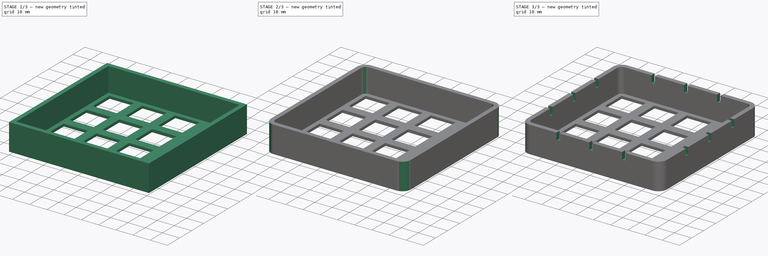
[diagram: build sequence overview — one tinted view per stage of 3, left to right]
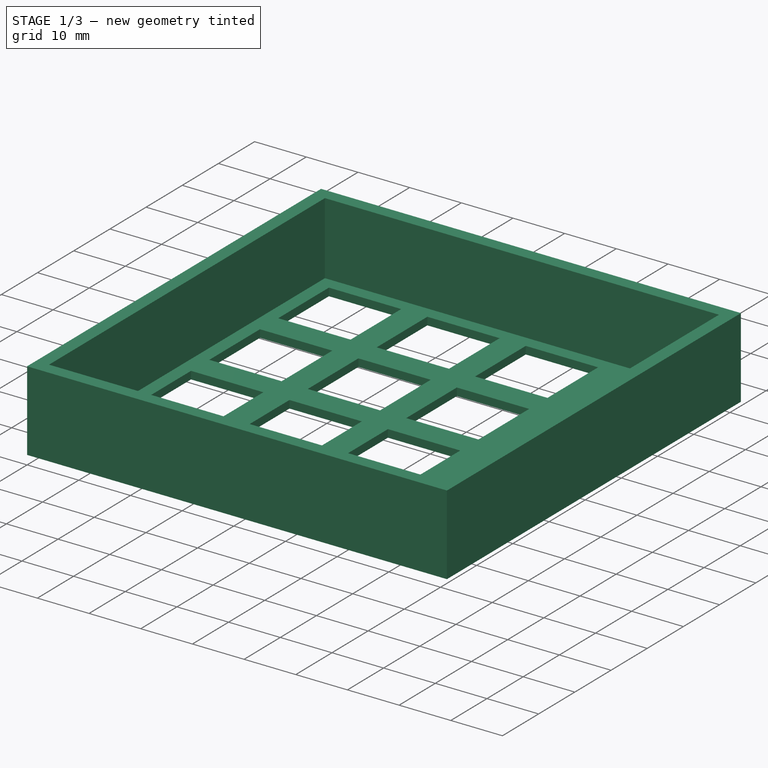
[diagram: stage 1 of 3 — iso view after this stage's code; geometry added in this stage tinted green]
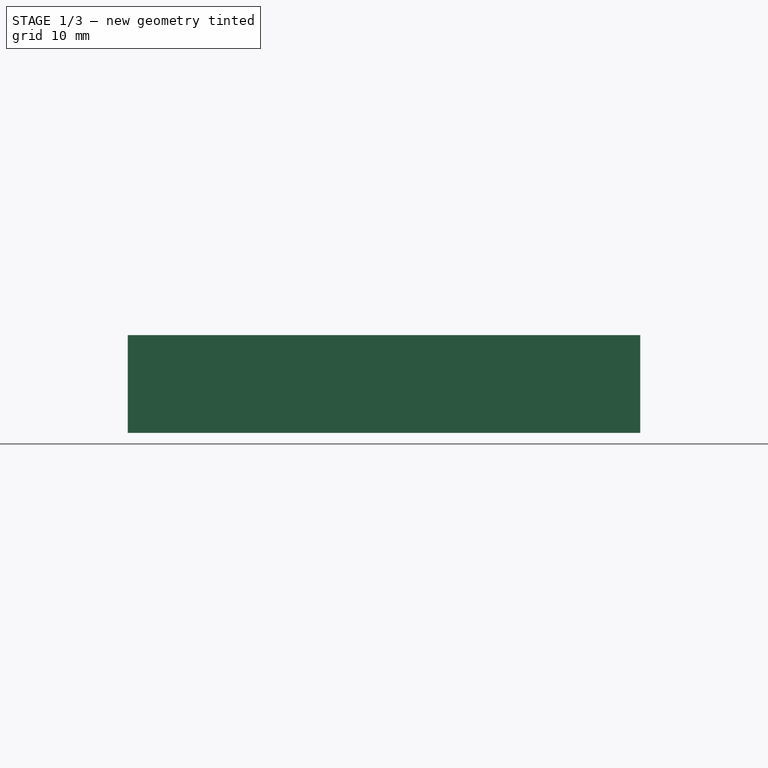
[diagram: stage 1 of 3 — front view after this stage's code; geometry added in this stage tinted green]
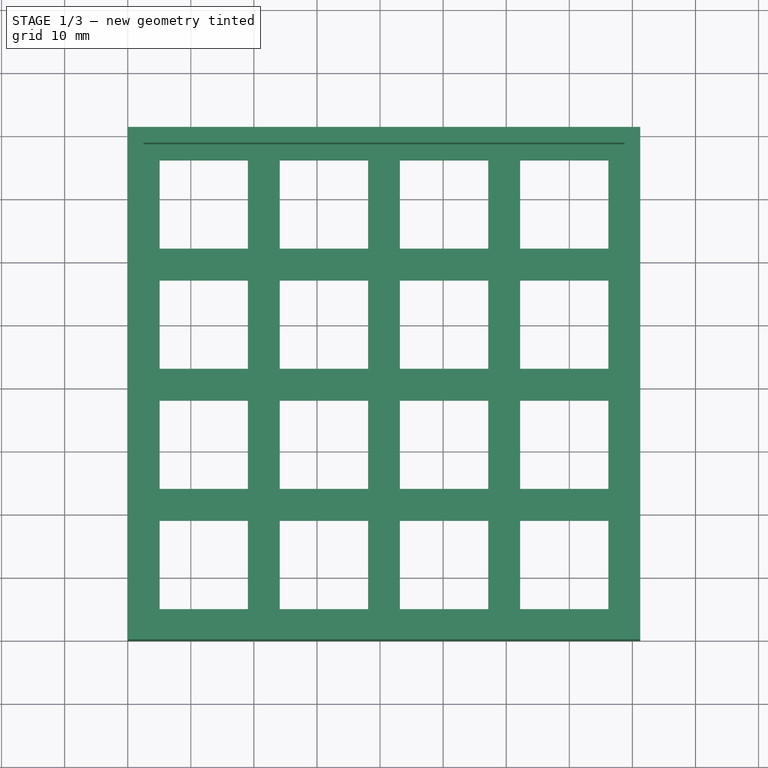
[diagram: stage 1 of 3 — top view after this stage's code; geometry added in this stage tinted green]
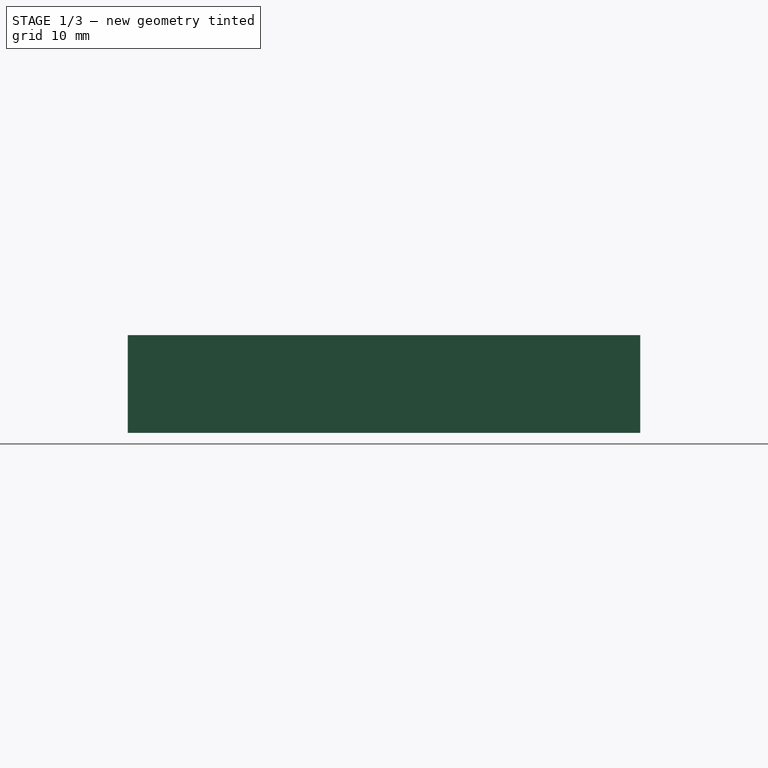
[diagram: stage 1 of 3 — right view after this stage's code; geometry added in this stage tinted green]
FCSTD DOCUMENT  (FreeCAD 0.19R24267 +148 (Git))
Label: 4x4 switch tester
License: All rights reserved
LicenseURL: http://en.wikipedia.org/wiki/All_rights_reserved
objects: Sketcher::SketchObject×4, PartDesign::Pad×2, PartDesign::Fillet×2, PartDesign::Pocket×2, PartDesign::Body×1
note: 17 computed .brp shape members not serialized (recipe doc carries the construction recipe); baked Part::Feature solids carry a one-line shape summary decoded from their .brp

FEATURE [Sketcher::SketchObject] Sketch
  FullyConstrained = true
  MapMode = 5
  Support = -> [XY_Plane]
  sketch-geometry (85):
    g0: LineSegment StartX=0 StartY=0 StartZ=0 EndX=81.25 EndY=0 EndZ=0
    g1: LineSegment StartX=81.25 StartY=0 StartZ=0 EndX=81.25 EndY=81.25 EndZ=0
    g2: LineSegment StartX=81.25 StartY=81.25 StartZ=0 EndX=0 EndY=81.25 EndZ=0
    g3: LineSegment StartX=0 StartY=81.25 StartZ=0 EndX=0 EndY=0 EndZ=0
    g4: LineSegment StartX=5.05 StartY=76.2 StartZ=0 EndX=19.05 EndY=76.2 EndZ=0
    g5: LineSegment StartX=19.05 StartY=76.2 StartZ=0 EndX=19.05 EndY=62.2 EndZ=0
    g6: LineSegment StartX=19.05 StartY=62.2 StartZ=0 EndX=5.05 EndY=62.2 EndZ=0
    g7: LineSegment StartX=5.05 StartY=62.2 StartZ=0 EndX=5.05 EndY=76.2 EndZ=0
    g8: LineSegment StartX=24.1 StartY=76.2 StartZ=0 EndX=38.1 EndY=76.2 EndZ=0
    g9: LineSegment StartX=38.1 StartY=76.2 StartZ=0 EndX=38.1 EndY=62.2 EndZ=0
    g10: LineSegment StartX=38.1 StartY=62.2 StartZ=0 EndX=24.1 EndY=62.2 EndZ=0
    g11: LineSegment StartX=24.1 StartY=62.2 StartZ=0 EndX=24.1 EndY=76.2 EndZ=0
    g12: LineSegment StartX=5.05 StartY=76.2 StartZ=0 EndX=24.1 EndY=76.2 EndZ=0
    g13: LineSegment StartX=43.15 StartY=76.2 StartZ=0 EndX=57.15 EndY=76.2 EndZ=0
    g14: LineSegment StartX=57.15 StartY=76.2 StartZ=0 EndX=57.15 EndY=62.2 EndZ=0
    g15: LineSegment StartX=57.15 StartY=62.2 StartZ=0 EndX=43.15 EndY=62.2 EndZ=0
    g16: LineSegment StartX=43.15 StartY=62.2 StartZ=0 EndX=43.15 EndY=76.2 EndZ=0
    g17: LineSegment StartX=24.1 StartY=76.2 StartZ=0 EndX=43.15 EndY=76.2 EndZ=0
    g18: LineSegment StartX=62.2 StartY=76.2 StartZ=0 EndX=76.2 EndY=76.2 EndZ=0
    g19: LineSegment StartX=76.2 StartY=76.2 StartZ=0 EndX=76.2 EndY=62.2 EndZ=0
    g20: LineSegment StartX=76.2 StartY=62.2 StartZ=0 EndX=62.2 EndY=62.2 EndZ=0
    g21: LineSegment StartX=62.2 StartY=62.2 StartZ=0 EndX=62.2 EndY=76.2 EndZ=0
    g22: LineSegment StartX=43.15 StartY=76.2 StartZ=0 EndX=62.2 EndY=76.2 EndZ=0
    g23: LineSegment StartX=5.05 StartY=57.15 StartZ=0 EndX=19.05 EndY=57.15 EndZ=0
    g24: LineSegment StartX=19.05 StartY=57.15 StartZ=0 EndX=19.05 EndY=43.15 EndZ=0
    g25: LineSegment StartX=19.05 StartY=43.15 StartZ=0 EndX=5.05 EndY=43.15 EndZ=0
    g26: LineSegment StartX=5.05 StartY=43.15 StartZ=0 EndX=5.05 EndY=57.15 EndZ=0
    g27: LineSegment StartX=5.05 StartY=76.2 StartZ=0 EndX=5.05 EndY=57.15 EndZ=0
    g28: LineSegment StartX=24.1 StartY=57.15 StartZ=0 EndX=38.1 EndY=57.15 EndZ=0
    g29: LineSegment StartX=38.1 StartY=57.15 StartZ=0 EndX=38.1 EndY=43.15 EndZ=0
    g30: LineSegment StartX=38.1 StartY=43.15 StartZ=0 EndX=24.1 EndY=43.15 EndZ=0
    g31: LineSegment StartX=24.1 StartY=43.15 StartZ=0 EndX=24.1 EndY=57.15 EndZ=0
    g32: LineSegment StartX=5.05 StartY=57.15 StartZ=0 EndX=24.1 EndY=57.15 EndZ=0
    g33: LineSegment StartX=43.15 StartY=57.15 StartZ=0 EndX=57.15 EndY=57.15 EndZ=0
    g34: LineSegment StartX=57.15 StartY=57.15 StartZ=0 EndX=57.15 EndY=43.15 EndZ=0
    g35: LineSegment StartX=57.15 StartY=43.15 StartZ=0 EndX=43.15 EndY=43.15 EndZ=0
    g36: LineSegment StartX=43.15 StartY=43.15 StartZ=0 EndX=43.15 EndY=57.15 EndZ=0
    g37: LineSegment StartX=24.1 StartY=57.15 StartZ=0 EndX=43.15 EndY=57.15 EndZ=0
    g38: LineSegment StartX=62.2 StartY=57.15 StartZ=0 EndX=76.2 EndY=57.15 EndZ=0
    g39: LineSegment StartX=76.2 StartY=57.15 StartZ=0 EndX=76.2 EndY=43.15 EndZ=0
    g40: LineSegment StartX=76.2 StartY=43.15 StartZ=0 EndX=62.2 EndY=43.15 EndZ=0
    g41: LineSegment StartX=62.2 StartY=43.15 StartZ=0 EndX=62.2 EndY=57.15 EndZ=0
    g42: LineSegment StartX=43.15 StartY=57.15 StartZ=0 EndX=62.2 EndY=57.15 EndZ=0
    g43: LineSegment StartX=5.05 StartY=38.1 StartZ=0 EndX=19.05 EndY=38.1 EndZ=0
    g44: LineSegment StartX=19.05 StartY=38.1 StartZ=0 EndX=19.05 EndY=24.1 EndZ=0
    g45: LineSegment StartX=19.05 StartY=24.1 StartZ=0 EndX=5.05 EndY=24.1 EndZ=0
    g46: LineSegment StartX=5.05 StartY=24.1 StartZ=0 EndX=5.05 EndY=38.1 EndZ=0
    g47: LineSegment StartX=5.05 StartY=57.15 StartZ=0 EndX=5.05 EndY=38.1 EndZ=0
    g48: LineSegment StartX=24.1 StartY=38.1 StartZ=0 EndX=38.1 EndY=38.1 EndZ=0
    g49: LineSegment StartX=38.1 StartY=38.1 StartZ=0 EndX=38.1 EndY=24.1 EndZ=0
    g50: LineSegment StartX=38.1 StartY=24.1 StartZ=0 EndX=24.1 EndY=24.1 EndZ=0
    g51: LineSegment StartX=24.1 StartY=24.1 StartZ=0 EndX=24.1 EndY=38.1 EndZ=0
    g52: LineSegment StartX=5.05 StartY=38.1 StartZ=0 EndX=24.1 EndY=38.1 EndZ=0
    g53: LineSegment StartX=43.15 StartY=38.1 StartZ=0 EndX=57.15 EndY=38.1 EndZ=0
    g54: LineSegment StartX=57.15 StartY=38.1 StartZ=0 EndX=57.15 EndY=24.1 EndZ=0
    g55: LineSegment StartX=57.15 StartY=24.1 StartZ=0 EndX=43.15 EndY=24.1 EndZ=0
    g56: LineSegment StartX=43.15 StartY=24.1 StartZ=0 EndX=43.15 EndY=38.1 EndZ=0
    g57: LineSegment StartX=24.1 StartY=38.1 StartZ=0 EndX=43.15 EndY=38.1 EndZ=0
    g58: LineSegment StartX=62.2 StartY=38.1 StartZ=0 EndX=76.2 EndY=38.1 EndZ=0
    g59: LineSegment StartX=76.2 StartY=38.1 StartZ=0 EndX=76.2 EndY=24.1 EndZ=0
    g60: LineSegment StartX=76.2 StartY=24.1 StartZ=0 EndX=62.2 EndY=24.1 EndZ=0
    g61: LineSegment StartX=62.2 StartY=24.1 StartZ=0 EndX=62.2 EndY=38.1 EndZ=0
    g62: LineSegment StartX=43.15 StartY=38.1 StartZ=0 EndX=62.2 EndY=38.1 EndZ=0
    g63: LineSegment StartX=5.05 StartY=19.05 StartZ=0 EndX=19.05 EndY=19.05 EndZ=0
    g64: LineSegment StartX=19.05 StartY=19.05 StartZ=0 EndX=19.05 EndY=5.05 EndZ=0
    g65: LineSegment StartX=19.05 StartY=5.05 StartZ=0 EndX=5.05 EndY=5.05 EndZ=0
    g66: LineSegment StartX=5.05 StartY=5.05 StartZ=0 EndX=5.05 EndY=19.05 EndZ=0
    g67: LineSegment StartX=5.05 StartY=38.1 StartZ=0 EndX=5.05 EndY=19.05 EndZ=0
    g68: LineSegment StartX=24.1 StartY=19.05 StartZ=0 EndX=38.1 EndY=19.05 EndZ=0
    g69: LineSegment StartX=38.1 StartY=19.05 StartZ=0 EndX=38.1 EndY=5.05 EndZ=0
    g70: LineSegment StartX=38.1 StartY=5.05 StartZ=0 EndX=24.1 EndY=5.05 EndZ=0
    g71: LineSegment StartX=24.1 StartY=5.05 StartZ=0 EndX=24.1 EndY=19.05 EndZ=0
    g72: LineSegment StartX=5.05 StartY=19.05 StartZ=0 EndX=24.1 EndY=19.05 EndZ=0
    g73: LineSegment StartX=43.15 StartY=19.05 StartZ=0 EndX=57.15 EndY=19.05 EndZ=0
    g74: LineSegment StartX=57.15 StartY=19.05 StartZ=0 EndX=57.15 EndY=5.05 EndZ=0
    g75: LineSegment StartX=57.15 StartY=5.05 StartZ=0 EndX=43.15 EndY=5.05 EndZ=0
    g76: LineSegment StartX=43.15 StartY=5.05 StartZ=0 EndX=43.15 EndY=19.05 EndZ=0
    g77: LineSegment StartX=24.1 StartY=19.05 StartZ=0 EndX=43.15 EndY=19.05 EndZ=0
    g78: LineSegment StartX=62.2 StartY=19.05 StartZ=0 EndX=76.2 EndY=19.05 EndZ=0
    g79: LineSegment StartX=76.2 StartY=19.05 StartZ=0 EndX=76.2 EndY=5.05 EndZ=0
    g80: LineSegment StartX=76.2 StartY=5.05 StartZ=0 EndX=62.2 EndY=5.05 EndZ=0
    g81: LineSegment StartX=62.2 StartY=5.05 StartZ=0 EndX=62.2 EndY=19.05 EndZ=0
    g82: LineSegment StartX=43.15 StartY=19.05 StartZ=0 EndX=62.2 EndY=19.05 EndZ=0
    g83: Circle CenterX=40.625 CenterY=40.625 CenterZ=0 NormalX=0 NormalY=0 NormalZ=1 AngleXU=0 Radius=3.57089
    g84: Circle CenterX=40.625 CenterY=40.625 CenterZ=0 NormalX=0 NormalY=0 NormalZ=1 AngleXU=0 Radius=57.4524
  constraints (238):
    c: Coincident(g0,g1)
    c: Coincident(g1,g2)
    c: Coincident(g2,g3)
    c: Coincident(g3,g0)
    c: Horizontal(g0)
    c: Horizontal(g2)
    c: Vertical(g1)
    c: Vertical(g3)
    c: Coincident(g0,g-1)
    c: Coincident(g4,g5)
    c: Coincident(g5,g6)
    c: Coincident(g6,g7)
    c: Coincident(g7,g4)
    c: Horizontal(g4)
    c: Horizontal(g6)
    c: Vertical(g5)
    c: Vertical(g7)
    c: Equal(g4,g5)
    c: DistanceX(g4,g4) = 14
    c: Coincident(g8,g9)
    c: Coincident(g9,g10)
    c: Coincident(g10,g11)
    c: Coincident(g11,g8)
    c: Horizontal(g8)
    c: Horizontal(g10)
    c: Vertical(g9)
    c: Vertical(g11)
    c: Equal(g8,g9)
    c: DistanceX(g8,g8) = 14
    c: Coincident(g4,g12)
    c: Coincident(g8,g12)
    c: Distance(g12) = 19.05
    c: Angle(g12) = 0
    c: Coincident(g13,g14)
    c: Coincident(g14,g15)
    c: Coincident(g15,g16)
    c: Coincident(g16,g13)
    c: Horizontal(g13)
    c: Horizontal(g15)
    c: Vertical(g14)
    c: Vertical(g16)
    c: Equal(g13,g14)
    c: DistanceX(g13,g13) = 14
    c: Coincident(g8,g17)
    c: Coincident(g13,g17)
    c: Equal(g12,g17)
    c: Parallel(g17,g12)
    c: Coincident(g18,g19)
    c: Coincident(g19,g20)
    c: Coincident(g20,g21)
    c: Coincident(g21,g18)
    c: Horizontal(g18)
    c: Horizontal(g20)
    c: Vertical(g19)
    c: Vertical(g21)
    c: Equal(g18,g19)
    c: DistanceX(g18,g18) = 14
    c: Coincident(g13,g22)
    c: Coincident(g18,g22)
    c: Equal(g12,g22)
    c: Parallel(g22,g12)
    c: Coincident(g23,g24)
    c: Coincident(g24,g25)
    c: Coincident(g25,g26)
    c: Coincident(g26,g23)
    c: Horizontal(g23)
    c: Horizontal(g25)
    c: Vertical(g24)
    c: Vertical(g26)
    c: Equal(g23,g24)
    c: DistanceX(g23,g23) = 14
    c: Coincident(g4,g27)
    c: Coincident(g23,g27)
    c: Equal(g27,g12)
    c: Perpendicular(g27,g12)
    c: Coincident(g28,g29)
    c: Coincident(g29,g30)
    c: Coincident(g30,g31)
    c: Coincident(g31,g28)
    c: Horizontal(g28)
    c: Horizontal(g30)
    c: Vertical(g29)
    c: Vertical(g31)
    c: Equal(g28,g29)
    c: DistanceX(g28,g28) = 14
    c: Coincident(g23,g32)
    c: Coincident(g28,g32)
    c: Equal(g12,g32)
    c: Parallel(g32,g12)
    c: Coincident(g33,g34)
    c: Coincident(g34,g35)
    c: Coincident(g35,g36)
    c: Coincident(g36,g33)
    c: Horizontal(g33)
    c: Horizontal(g35)
    c: Vertical(g34)
    c: Vertical(g36)
    c: Equal(g33,g34)
    c: DistanceX(g33,g33) = 14
    c: Coincident(g28,g37)
    c: Coincident(g33,g37)
    c: Equal(g12,g37)
    c: Parallel(g37,g12)
    c: Coincident(g38,g39)
    c: Coincident(g39,g40)
    c: Coincident(g40,g41)
    c: Coincident(g41,g38)
    c: Horizontal(g38)
    c: Horizontal(g40)
    c: Vertical(g39)
    c: Vertical(g41)
    c: Equal(g38,g39)
    c: DistanceX(g38,g38) = 14
    c: Coincident(g33,g42)
    c: Coincident(g38,g42)
    c: Equal(g12,g42)
    c: Parallel(g42,g12)
    c: Coincident(g43,g44)
    c: Coincident(g44,g45)
    c: Coincident(g45,g46)
    c: Coincident(g46,g43)
    c: Horizontal(g43)
    c: Horizontal(g45)
    c: Vertical(g44)
    c: Vertical(g46)
    c: Equal(g43,g44)
    c: DistanceX(g43,g43) = 14
    c: Coincident(g23,g47)
    c: Coincident(g43,g47)
    c: Equal(g27,g47)
    c: Perpendicular(g47,g12)
    c: Coincident(g48,g49)
    c: Coincident(g49,g50)
    c: Coincident(g50,g51)
    c: Coincident(g51,g48)
    c: Horizontal(g48)
    c: Horizontal(g50)
    c: Vertical(g49)
    c: Vertical(g51)
    c: Equal(g48,g49)
    c: DistanceX(g48,g48) = 14
    c: Coincident(g43,g52)
    c: Coincident(g48,g52)
    c: Equal(g12,g52)
    c: Parallel(g52,g12)
    c: Coincident(g53,g54)
    c: Coincident(g54,g55)
    c: Coincident(g55,g56)
    c: Coincident(g56,g53)
    c: Horizontal(g53)
    c: Horizontal(g55)
    c: Vertical(g54)
    c: Vertical(g56)
    c: Equal(g53,g54)
    c: DistanceX(g53,g53) = 14
    c: Coincident(g48,g57)
    c: Coincident(g53,g57)
    c: Equal(g12,g57)
    c: Parallel(g57,g12)
    c: Coincident(g58,g59)
    c: Coincident(g59,g60)
    c: Coincident(g60,g61)
    c: Coincident(g61,g58)
    c: Horizontal(g58)
    c: Horizontal(g60)
    c: Vertical(g59)
    c: Vertical(g61)
    c: Equal(g58,g59)
    c: DistanceX(g58,g58) = 14
    c: Coincident(g53,g62)
    c: Coincident(g58,g62)
    c: Equal(g12,g62)
    c: Parallel(g62,g12)
    c: Coincident(g63,g64)
    c: Coincident(g64,g65)
    c: Coincident(g65,g66)
    c: Coincident(g66,g63)
    c: Horizontal(g63)
    c: Horizontal(g65)
    c: Vertical(g64)
    c: Vertical(g66)
    c: Equal(g63,g64)
    c: DistanceX(g63,g63) = 14
    c: Coincident(g43,g67)
    c: Coincident(g63,g67)
    c: Equal(g27,g67)
    c: Perpendicular(g67,g12)
    c: Coincident(g68,g69)
    c: Coincident(g69,g70)
    c: Coincident(g70,g71)
    c: Coincident(g71,g68)
    c: Horizontal(g68)
    c: Horizontal(g70)
    c: Vertical(g69)
    c: Vertical(g71)
    c: Equal(g68,g69)
    c: DistanceX(g68,g68) = 14
    c: Coincident(g63,g72)
    c: Coincident(g68,g72)
    c: Equal(g12,g72)
    c: Parallel(g72,g12)
    c: Coincident(g73,g74)
    c: Coincident(g74,g75)
    c: Coincident(g75,g76)
    c: Coincident(g76,g73)
    c: Horizontal(g73)
    c: Horizontal(g75)
    c: Vertical(g74)
    c: Vertical(g76)
    c: Equal(g73,g74)
    c: DistanceX(g73,g73) = 14
    c: Coincident(g68,g77)
    c: Coincident(g73,g77)
    c: Equal(g12,g77)
    c: Parallel(g77,g12)
    c: Coincident(g78,g79)
    c: Coincident(g79,g80)
    c: Coincident(g80,g81)
    c: Coincident(g81,g78)
    c: Horizontal(g78)
    c: Horizontal(g80)
    c: Vertical(g79)
    c: Vertical(g81)
    c: Equal(g78,g79)
    c: DistanceX(g78,g78) = 14
    c: Coincident(g73,g82)
    c: Coincident(g78,g82)
    c: Equal(g12,g82)
    c: Parallel(g82,g12)
    c: PointOnObject(g29,g83)
    c: PointOnObject(g35,g83)
    c: PointOnObject(g53,g83)
    c: Equal(g2,g1)
    c: PointOnObject(g2,g84)
    c: PointOnObject(g1,g84)
    c: PointOnObject(g0,g84)
    c: DistanceX(g1) = 81.25
    c: Coincident(g83,g84)
FEATURE [PartDesign::Pad] Pad
  Direction = (1,1,1)
  Length = 1.5
  Length2 = 100
  Profile = -> Sketch
  Type = 0
FEATURE [Sketcher::SketchObject] Sketch001
  FullyConstrained = true
  MapMode = 5
  Placement = pos=(0,0,1.5) rot=(0,0,1;0rad)
  Support = -> [Pad]
  sketch-geometry (10):
    g0: LineSegment StartX=0 StartY=0 StartZ=0 EndX=81.25 EndY=0 EndZ=0
    g1: LineSegment StartX=81.25 StartY=0 StartZ=0 EndX=81.25 EndY=81.25 EndZ=0
    g2: LineSegment StartX=81.25 StartY=81.25 StartZ=0 EndX=0 EndY=81.25 EndZ=0
    g3: LineSegment StartX=0 StartY=81.25 StartZ=0 EndX=0 EndY=0 EndZ=0
    g4: Circle CenterX=40.625 CenterY=40.625 CenterZ=0 NormalX=0 NormalY=0 NormalZ=1 AngleXU=0 Radius=57.4524
    g5: LineSegment StartX=2.5 StartY=78.75 StartZ=0 EndX=78.75 EndY=78.75 EndZ=0
    g6: LineSegment StartX=78.75 StartY=78.75 StartZ=0 EndX=78.75 EndY=2.5 EndZ=0
    g7: LineSegment StartX=78.75 StartY=2.5 StartZ=0 EndX=2.5 EndY=2.5 EndZ=0
    g8: LineSegment StartX=2.5 StartY=2.5 StartZ=0 EndX=2.5 EndY=78.75 EndZ=0
    g9: Circle CenterX=40.625 CenterY=40.625 CenterZ=0 NormalX=0 NormalY=0 NormalZ=1 AngleXU=0 Radius=53.9169
  constraints (28):
    c: Coincident(g0,g1)
    c: Coincident(g1,g2)
    c: Coincident(g2,g3)
    c: Coincident(g3,g0)
    c: Horizontal(g0)
    c: Horizontal(g2)
    c: Vertical(g1)
    c: Vertical(g3)
    c: Coincident(g0,g-1)
    c: Equal(g2,g1)
    c: DistanceX(g2,g2) = 81.25
    c: PointOnObject(g1,g4)
    c: PointOnObject(g0,g4)
    c: PointOnObject(g0,g4)
    c: Coincident(g5,g6)
    c: Coincident(g6,g7)
    c: Coincident(g7,g8)
    c: Coincident(g8,g5)
    c: Horizontal(g5)
    c: Horizontal(g7)
    c: Vertical(g6)
    c: Vertical(g8)
    c: Equal(g6,g5)
    c: DistanceX(g5,g5) = 76.25
    c: Coincident(g9,g4)
    c: PointOnObject(g5,g9)
    c: PointOnObject(g5,g9)
    c: PointOnObject(g6,g9)
FEATURE [PartDesign::Pad] Pad001
  BaseFeature = -> Pad
  Direction = (1,1,1)
  Length = 14
  Length2 = 100
  Profile = -> Sketch001
  Type = 0
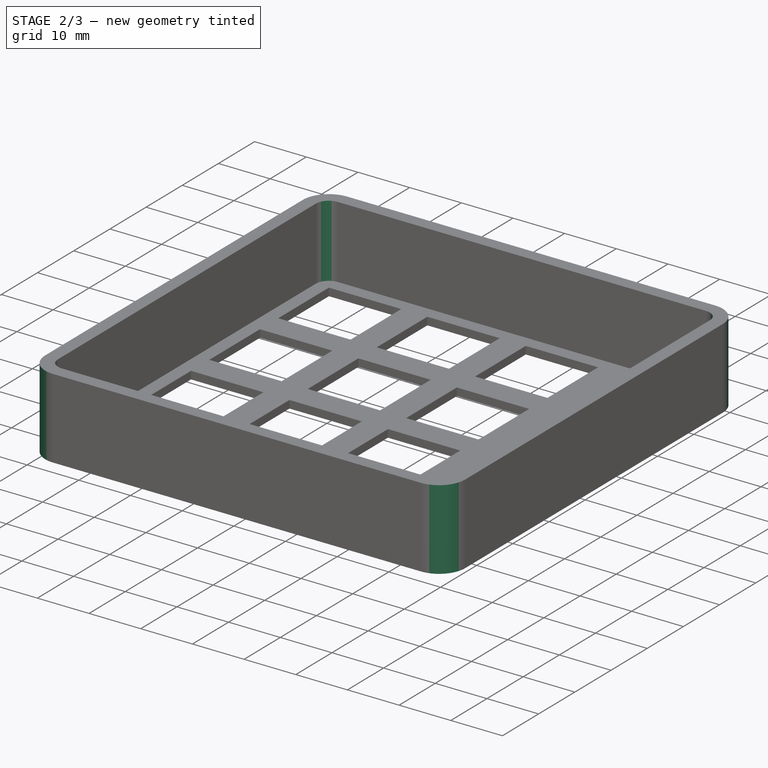
[diagram: stage 2 of 3 — iso view after this stage's code; geometry added in this stage tinted green]
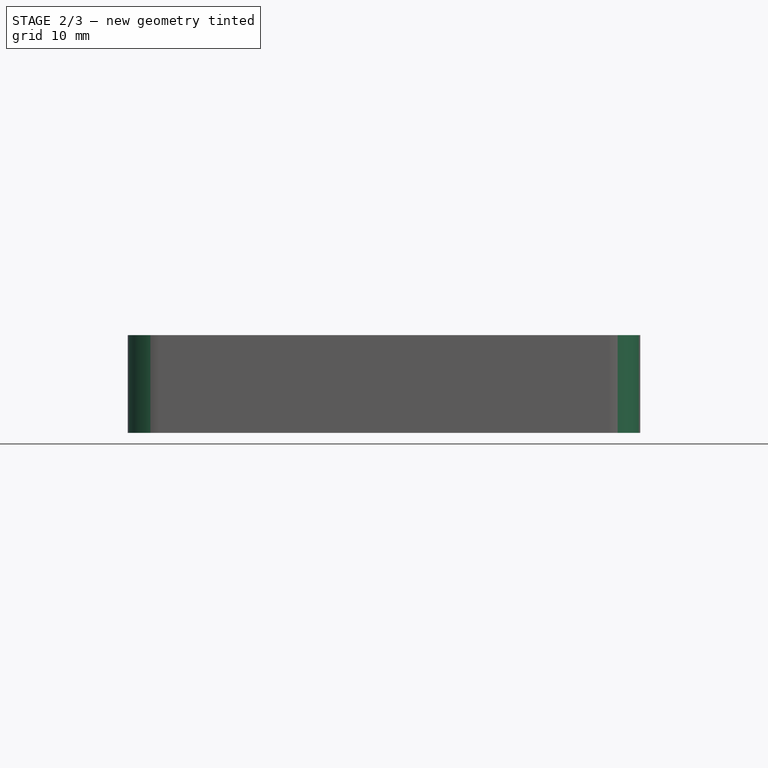
[diagram: stage 2 of 3 — front view after this stage's code; geometry added in this stage tinted green]
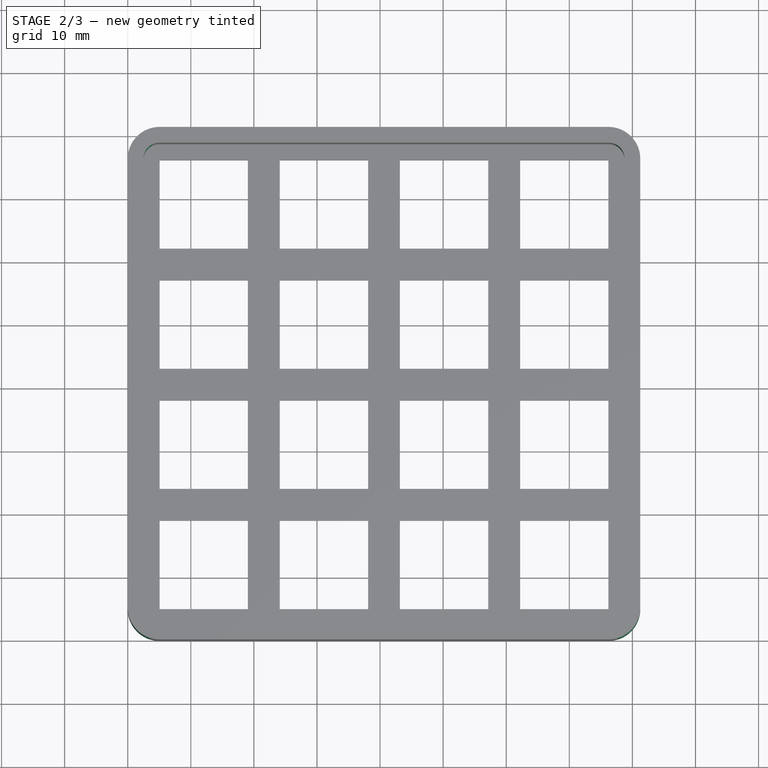
[diagram: stage 2 of 3 — top view after this stage's code; geometry added in this stage tinted green]
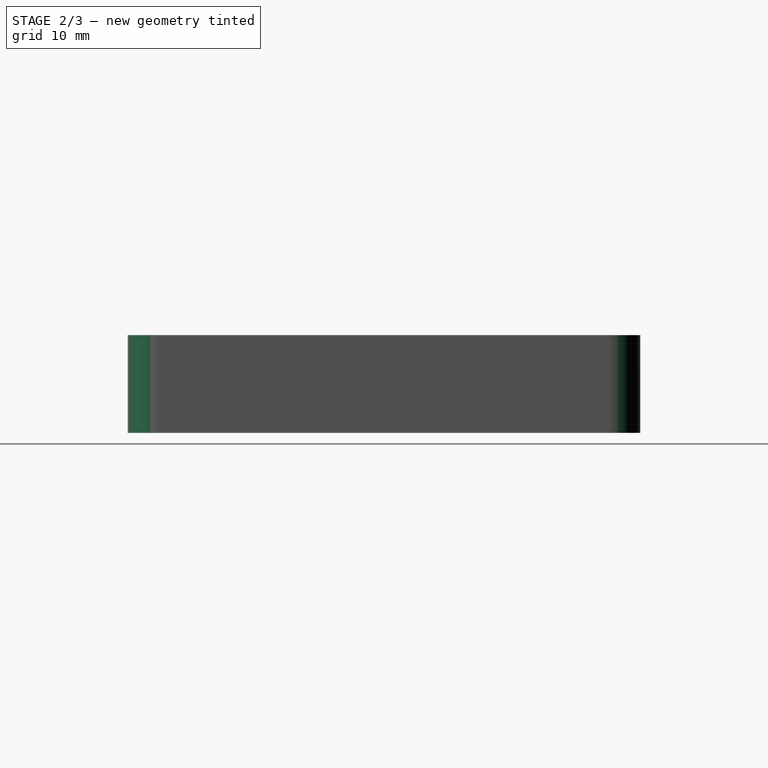
[diagram: stage 2 of 3 — right view after this stage's code; geometry added in this stage tinted green]
FEATURE [PartDesign::Fillet] Fillet
  Base = -> Pad001 [Edge76,Edge77,Edge82,Edge80]
  BaseFeature = -> Pad001
  Radius = 5.05
  SupportTransform = false
FEATURE [PartDesign::Fillet] Fillet001
  Base = -> Fillet [Edge241,Edge244,Edge243,Edge242]
  BaseFeature = -> Fillet
  Radius = 2.5
  SupportTransform = false
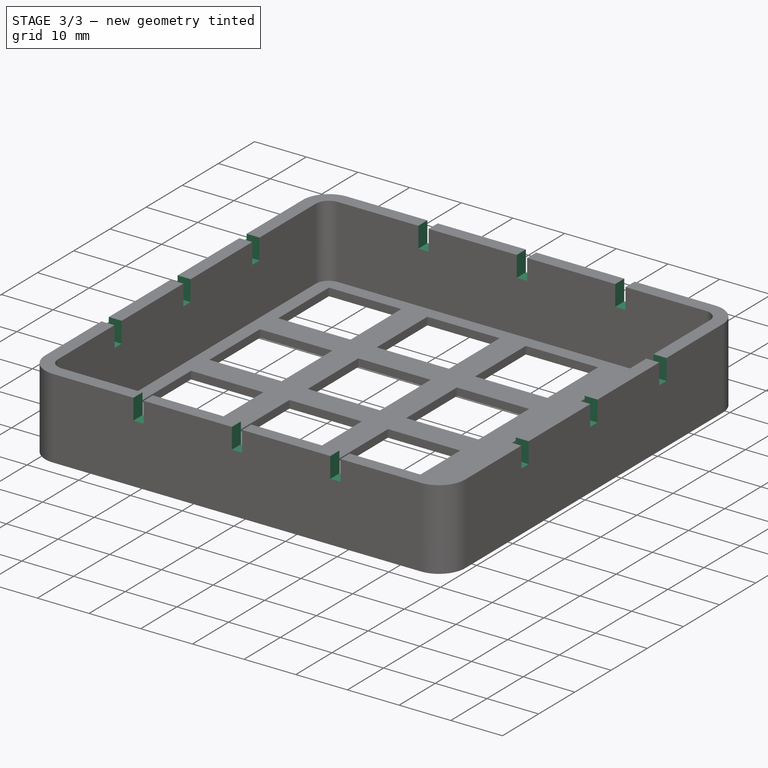
[diagram: stage 3 of 3 — iso view after this stage's code; geometry added in this stage tinted green]
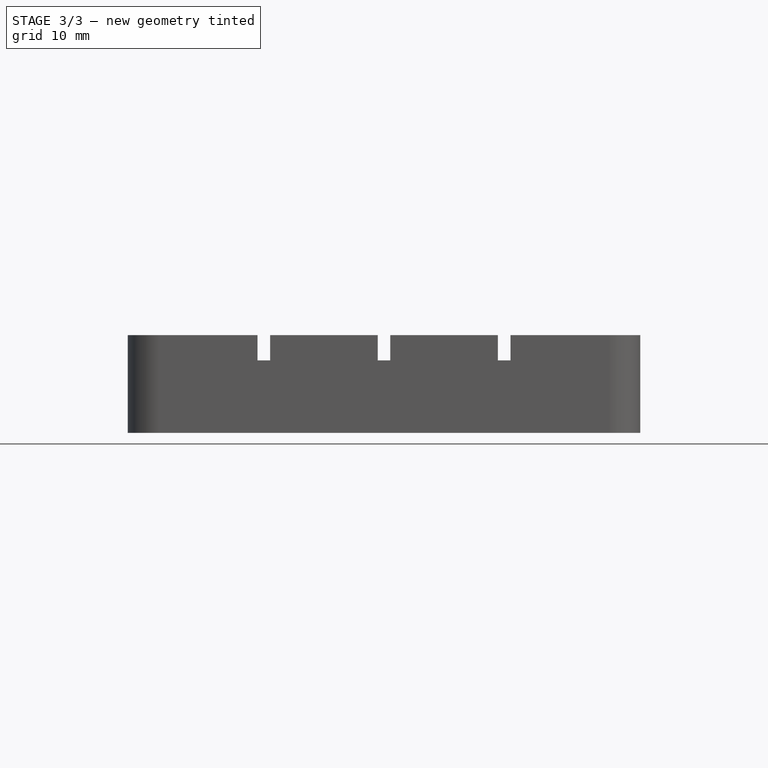
[diagram: stage 3 of 3 — front view after this stage's code; geometry added in this stage tinted green]
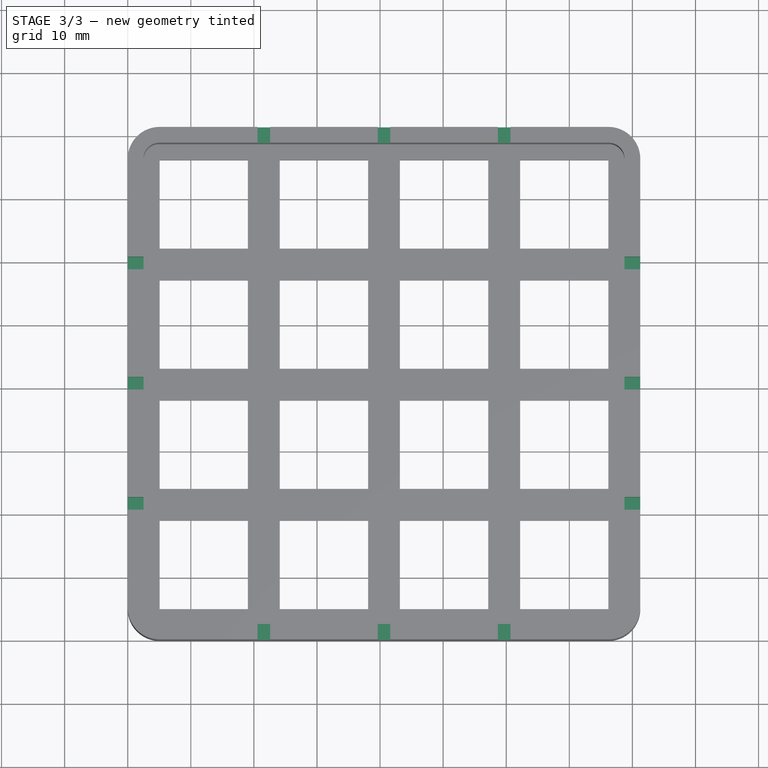
[diagram: stage 3 of 3 — top view after this stage's code; geometry added in this stage tinted green]
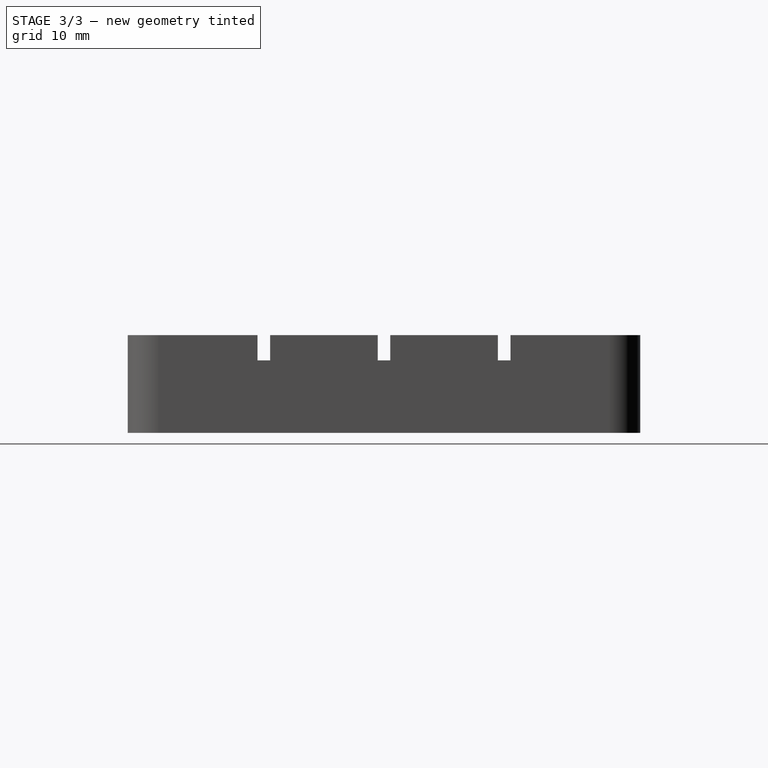
[diagram: stage 3 of 3 — right view after this stage's code; geometry added in this stage tinted green]
FEATURE [Sketcher::SketchObject] Sketch002
  FullyConstrained = true
  MapMode = 5
  Placement = pos=(0,0,0) rot=(1,0,0;1.5708rad)
  Support = -> [Fillet001]
  sketch-geometry (44):
    g0: LineSegment StartX=0 StartY=0 StartZ=0 EndX=81.25 EndY=0 EndZ=0
    g1: LineSegment StartX=81.25 StartY=0 StartZ=0 EndX=81.25 EndY=15.5 EndZ=0
    g2: LineSegment StartX=81.25 StartY=15.5 StartZ=0 EndX=0 EndY=15.5 EndZ=0
    g3: LineSegment StartX=0 StartY=15.5 StartZ=0 EndX=0 EndY=0 EndZ=0
    g4: LineSegment StartX=0 StartY=15.5 StartZ=0 EndX=81.25 EndY=0 EndZ=0
    g5: LineSegment StartX=81.25 StartY=15.5 StartZ=0 EndX=0 EndY=0 EndZ=0
    g6: GeomPoint X=40.625 Y=7.75 Z=0
    g7: LineSegment StartX=24.1 StartY=15.5 StartZ=0 EndX=19.05 EndY=15.5 EndZ=0
    g8: LineSegment StartX=19.05 StartY=15.5 StartZ=0 EndX=19.05 EndY=11.5 EndZ=0
    g9: LineSegment StartX=19.05 StartY=11.5 StartZ=0 EndX=24.1 EndY=11.5 EndZ=0
    g10: LineSegment StartX=24.1 StartY=11.5 StartZ=0 EndX=24.1 EndY=15.5 EndZ=0
    g11: LineSegment StartX=41.625 StartY=15.5 StartZ=0 EndX=39.625 EndY=15.5 EndZ=0
    g12: LineSegment StartX=39.625 StartY=15.5 StartZ=0 EndX=39.625 EndY=11.5 EndZ=0
    g13: LineSegment StartX=39.625 StartY=11.5 StartZ=0 EndX=41.625 EndY=11.5 EndZ=0
    g14: LineSegment StartX=41.625 StartY=11.5 StartZ=0 EndX=41.625 EndY=15.5 EndZ=0
    g15: LineSegment StartX=39.625 StartY=15.5 StartZ=0 EndX=41.625 EndY=11.5 EndZ=0
    g16: LineSegment StartX=41.625 StartY=15.5 StartZ=0 EndX=39.625 EndY=11.5 EndZ=0
    g17: GeomPoint X=40.625 Y=13.5 Z=0
    g18: LineSegment StartX=40.625 StartY=13.5 StartZ=0 EndX=40.625 EndY=7.75 EndZ=0
    g19: LineSegment StartX=19.05 StartY=15.5 StartZ=0 EndX=24.1 EndY=11.5 EndZ=0
    g20: LineSegment StartX=24.1 StartY=15.5 StartZ=0 EndX=19.05 EndY=11.5 EndZ=0
    g21: GeomPoint X=21.575 Y=13.5 Z=0
    g22: LineSegment StartX=22.575 StartY=15.5 StartZ=0 EndX=20.575 EndY=15.5 EndZ=0
    g23: LineSegment StartX=20.575 StartY=15.5 StartZ=0 EndX=20.575 EndY=11.5 EndZ=0
    g24: LineSegment StartX=20.575 StartY=11.5 StartZ=0 EndX=22.575 EndY=11.5 EndZ=0
    g25: LineSegment StartX=22.575 StartY=11.5 StartZ=0 EndX=22.575 EndY=15.5 EndZ=0
    g26: LineSegment StartX=20.575 StartY=15.5 StartZ=0 EndX=22.575 EndY=11.5 EndZ=0
    g27: LineSegment StartX=22.575 StartY=15.5 StartZ=0 EndX=20.575 EndY=11.5 EndZ=0
    g28: GeomPoint X=21.575 Y=13.5 Z=0
    g29: LineSegment StartX=21.575 StartY=13.5 StartZ=0 EndX=21.575 EndY=13.5 EndZ=0
    g30: LineSegment StartX=62.2 StartY=15.5 StartZ=0 EndX=57.15 EndY=15.5 EndZ=0
    g31: LineSegment StartX=57.15 StartY=15.5 StartZ=0 EndX=57.15 EndY=11.5 EndZ=0
    g32: LineSegment StartX=57.15 StartY=11.5 StartZ=0 EndX=62.2 EndY=11.5 EndZ=0
    g33: LineSegment StartX=62.2 StartY=11.5 StartZ=0 EndX=62.2 EndY=15.5 EndZ=0
    g34: LineSegment StartX=57.15 StartY=15.5 StartZ=0 EndX=62.2 EndY=11.5 EndZ=0
    g35: LineSegment StartX=62.2 StartY=15.5 StartZ=0 EndX=57.15 EndY=11.5 EndZ=0
    g36: GeomPoint X=59.675 Y=13.5 Z=0
    g37: LineSegment StartX=60.675 StartY=15.5 StartZ=0 EndX=58.675 EndY=15.5 EndZ=0
    g38: LineSegment StartX=58.675 StartY=15.5 StartZ=0 EndX=58.675 EndY=11.5 EndZ=0
    g39: LineSegment StartX=58.675 StartY=11.5 StartZ=0 EndX=60.675 EndY=11.5 EndZ=0
    g40: LineSegment StartX=60.675 StartY=11.5 StartZ=0 EndX=60.675 EndY=15.5 EndZ=0
    g41: LineSegment StartX=58.675 StartY=15.5 StartZ=0 EndX=60.675 EndY=11.5 EndZ=0
    g42: LineSegment StartX=60.675 StartY=15.5 StartZ=0 EndX=58.675 EndY=11.5 EndZ=0
    g43: GeomPoint X=59.675 Y=13.5 Z=0
  constraints (110):
    c: Coincident(g0,g1)
    c: Coincident(g1,g2)
    c: Coincident(g2,g3)
    c: Coincident(g3,g0)
    c: Horizontal(g0)
    c: Horizontal(g2)
    c: Vertical(g1)
    c: Vertical(g3)
    c: Coincident(g0,g-1)
    c: DistanceX(g2,g2) = 81.25
    c: DistanceY(g1,g1) = 15.5
    c: Coincident(g4,g2)
    c: Coincident(g4,g0)
    c: Coincident(g5,g1)
    c: Coincident(g5,g-1)
    c: PointOnObject(g6,g5)
    c: PointOnObject(g6,g4)
    c: Coincident(g7,g8)
    c: Coincident(g8,g9)
    c: Coincident(g9,g10)
    c: Coincident(g10,g7)
    c: Horizontal(g7)
    c: Horizontal(g9)
    c: Vertical(g8)
    c: Vertical(g10)
    c: PointOnObject(g7,g2)
    c: Distance(g7,g3) = 19.05
    c: Distance(g9) = 5.05
    c: Coincident(g11,g12)
    c: Coincident(g12,g13)
    c: Coincident(g13,g14)
    c: Coincident(g14,g11)
    c: Horizontal(g11)
    c: Horizontal(g13)
    c: Vertical(g12)
    c: Vertical(g14)
    c: PointOnObject(g11,g2)
    c: Coincident(g15,g11)
    c: Coincident(g15,g13)
    c: Coincident(g16,g11)
    c: Coincident(g16,g12)
    c: PointOnObject(g17,g15)
    c: PointOnObject(g17,g16)
    c: Coincident(g18,g17)
    c: Coincident(g18,g6)
    c: Vertical(g18)
    c: DistanceX(g13,g13) = 2
    c: DistanceY(g12,g12) = 4
    c: DistanceY(g10,g10) = 4
    c: Coincident(g19,g7)
    c: Coincident(g19,g9)
    c: Coincident(g20,g7)
    c: Coincident(g20,g8)
    c: PointOnObject(g21,g20)
    c: PointOnObject(g21,g19)
    c: Coincident(g22,g23)
    c: Coincident(g23,g24)
    c: Coincident(g24,g25)
    c: Coincident(g25,g22)
    c: Horizontal(g22)
    c: Horizontal(g24)
    c: Vertical(g23)
    c: Vertical(g25)
    c: PointOnObject(g22,g2)
    c: Coincident(g26,g22)
    c: Coincident(g26,g24)
    c: Coincident(g27,g22)
    c: Coincident(g27,g23)
    c: PointOnObject(g28,g27)
    c: PointOnObject(g28,g26)
    c: Coincident(g29,g21)
    c: Coincident(g29,g28)
    c: Vertical(g29)
    c: DistanceY(g25,g25) = 4
    c: DistanceX(g24,g24) = 2
    c: Coincident(g30,g31)
    c: Coincident(g31,g32)
    c: Coincident(g32,g33)
    c: Coincident(g33,g30)
    c: Horizontal(g30)
    c: Horizontal(g32)
    c: Vertical(g31)
    c: Vertical(g33)
    c: PointOnObject(g30,g2)
    c: DistanceY(g33,g33) = 4
    c: DistanceX(g32,g32) = 5.05
    c: Coincident(g34,g30)
    c: Coincident(g34,g32)
    c: Coincident(g35,g30)
    c: Coincident(g35,g31)
    c: PointOnObject(g36,g34)
    c: PointOnObject(g36,g35)
    c: Coincident(g37,g38)
    c: Coincident(g38,g39)
    c: Coincident(g39,g40)
    c: Coincident(g40,g37)
    c: Horizontal(g37)
    c: Horizontal(g39)
    c: Vertical(g38)
    c: Vertical(g40)
    c: PointOnObject(g37,g2)
    c: Coincident(g41,g37)
    c: Coincident(g41,g39)
    c: Coincident(g42,g37)
    c: Coincident(g42,g38)
    c: PointOnObject(g43,g42)
    c: PointOnObject(g43,g41)
    c: DistanceX(g39,g39) = 2
    c: Coincident(g43,g36)
    c: Distance(g32,g1) = 19.05
FEATURE [PartDesign::Pocket] Pocket
  BaseFeature = -> Fillet001
  Length = 85
  Length2 = 100
  Profile = -> Sketch002
  Type = 0
FEATURE [Sketcher::SketchObject] Sketch003
  FullyConstrained = true
  MapMode = 5
  Placement = pos=(0,0,0) rot=(0.57735,-0.57735,-0.57735;2.0944rad)
  Support = -> [Pocket]
  sketch-geometry (44):
    g0: LineSegment StartX=0 StartY=0 StartZ=0 EndX=-81.25 EndY=0 EndZ=0
    g1: LineSegment StartX=-81.25 StartY=0 StartZ=0 EndX=-81.25 EndY=15.5 EndZ=0
    g2: LineSegment StartX=-81.25 StartY=15.5 StartZ=0 EndX=0 EndY=15.5 EndZ=0
    g3: LineSegment StartX=0 StartY=15.5 StartZ=0 EndX=0 EndY=0 EndZ=0
    g4: LineSegment StartX=-81.25 StartY=15.5 StartZ=0 EndX=0 EndY=0 EndZ=0
    g5: LineSegment StartX=0 StartY=15.5 StartZ=0 EndX=-81.25 EndY=0 EndZ=0
    g6: GeomPoint X=-40.625 Y=7.75 Z=0
    g7: LineSegment StartX=-39.625 StartY=15.5 StartZ=0 EndX=-41.625 EndY=15.5 EndZ=0
    g8: LineSegment StartX=-41.625 StartY=15.5 StartZ=0 EndX=-41.625 EndY=11.5 EndZ=0
    g9: LineSegment StartX=-41.625 StartY=11.5 StartZ=0 EndX=-39.625 EndY=11.5 EndZ=0
    g10: LineSegment StartX=-39.625 StartY=11.5 StartZ=0 EndX=-39.625 EndY=15.5 EndZ=0
    g11: LineSegment StartX=-41.625 StartY=15.5 StartZ=0 EndX=-39.625 EndY=11.5 EndZ=0
    g12: LineSegment StartX=-39.625 StartY=15.5 StartZ=0 EndX=-41.625 EndY=11.5 EndZ=0
    g13: GeomPoint X=-40.625 Y=13.5 Z=0
    g14: LineSegment StartX=-40.625 StartY=13.5 StartZ=0 EndX=-40.625 EndY=7.75 EndZ=0
    g15: LineSegment StartX=-24.1 StartY=15.5 StartZ=0 EndX=-19.05 EndY=15.5 EndZ=0
    g16: LineSegment StartX=-19.05 StartY=15.5 StartZ=0 EndX=-19.05 EndY=11.5 EndZ=0
    g17: LineSegment StartX=-19.05 StartY=11.5 StartZ=0 EndX=-24.1 EndY=11.5 EndZ=0
    g18: LineSegment StartX=-24.1 StartY=11.5 StartZ=0 EndX=-24.1 EndY=15.5 EndZ=0
    g19: LineSegment StartX=-24.1 StartY=15.5 StartZ=0 EndX=-19.05 EndY=11.5 EndZ=0
    g20: LineSegment StartX=-19.05 StartY=15.5 StartZ=0 EndX=-24.1 EndY=11.5 EndZ=0
    g21: GeomPoint X=-21.575 Y=13.5 Z=0
    g22: LineSegment StartX=-20.575 StartY=15.5 StartZ=0 EndX=-22.575 EndY=15.5 EndZ=0
    g23: LineSegment StartX=-22.575 StartY=15.5 StartZ=0 EndX=-22.575 EndY=11.5 EndZ=0
    g24: LineSegment StartX=-22.575 StartY=11.5 StartZ=0 EndX=-20.575 EndY=11.5 EndZ=0
    g25: LineSegment StartX=-20.575 StartY=11.5 StartZ=0 EndX=-20.575 EndY=15.5 EndZ=0
    g26: LineSegment StartX=-22.575 StartY=15.5 StartZ=0 EndX=-20.575 EndY=11.5 EndZ=0
    g27: LineSegment StartX=-20.575 StartY=15.5 StartZ=0 EndX=-22.575 EndY=11.5 EndZ=0
    g28: GeomPoint X=-21.575 Y=13.5 Z=0
    g29: LineSegment StartX=-21.575 StartY=13.5 StartZ=0 EndX=-21.575 EndY=13.5 EndZ=0
    g30: LineSegment StartX=-57.15 StartY=15.5 StartZ=0 EndX=-62.2 EndY=15.5 EndZ=0
    g31: LineSegment StartX=-62.2 StartY=15.5 StartZ=0 EndX=-62.2 EndY=11.5 EndZ=0
    g32: LineSegment StartX=-62.2 StartY=11.5 StartZ=0 EndX=-57.15 EndY=11.5 EndZ=0
    g33: LineSegment StartX=-57.15 StartY=11.5 StartZ=0 EndX=-57.15 EndY=15.5 EndZ=0
    g34: LineSegment StartX=-62.2 StartY=15.5 StartZ=0 EndX=-57.15 EndY=11.5 EndZ=0
    g35: LineSegment StartX=-57.15 StartY=15.5 StartZ=0 EndX=-62.2 EndY=11.5 EndZ=0
    g36: GeomPoint X=-59.675 Y=13.5 Z=0
    g37: LineSegment StartX=-60.675 StartY=15.5 StartZ=0 EndX=-58.675 EndY=15.5 EndZ=0
    g38: LineSegment StartX=-58.675 StartY=15.5 StartZ=0 EndX=-58.675 EndY=11.5 EndZ=0
    g39: LineSegment StartX=-58.675 StartY=11.5 StartZ=0 EndX=-60.675 EndY=11.5 EndZ=0
    g40: LineSegment StartX=-60.675 StartY=11.5 StartZ=0 EndX=-60.675 EndY=15.5 EndZ=0
    g41: LineSegment StartX=-60.675 StartY=15.5 StartZ=0 EndX=-58.675 EndY=11.5 EndZ=0
    g42: LineSegment StartX=-58.675 StartY=15.5 StartZ=0 EndX=-60.675 EndY=11.5 EndZ=0
    g43: GeomPoint X=-59.675 Y=13.5 Z=0
  constraints (110):
    c: Coincident(g0,g1)
    c: Coincident(g1,g2)
    c: Coincident(g2,g3)
    c: Coincident(g3,g0)
    c: Horizontal(g0)
    c: Horizontal(g2)
    c: Vertical(g1)
    c: Vertical(g3)
    c: Coincident(g0,g-1)
    c: DistanceX(g2,g2) = 81.25
    c: DistanceY(g1,g1) = 15.5
    c: Coincident(g4,g1)
    c: Coincident(g4,g-1)
    c: Coincident(g5,g2)
    c: Coincident(g5,g0)
    c: PointOnObject(g6,g4)
    c: PointOnObject(g6,g5)
    c: Coincident(g7,g8)
    c: Coincident(g8,g9)
    c: Coincident(g9,g10)
    c: Coincident(g10,g7)
    c: Horizontal(g7)
    c: Horizontal(g9)
    c: Vertical(g8)
    c: Vertical(g10)
    c: PointOnObject(g7,g2)
    c: Coincident(g11,g7)
    c: Coincident(g11,g9)
    c: Coincident(g12,g7)
    c: Coincident(g12,g8)
    c: PointOnObject(g13,g11)
    c: PointOnObject(g13,g12)
    c: DistanceY(g10,g10) = 4
    c: DistanceX(g9,g9) = 2
    c: Coincident(g14,g13)
    c: Coincident(g14,g6)
    c: Vertical(g14)
    c: Coincident(g15,g16)
    c: Coincident(g16,g17)
    c: Coincident(g17,g18)
    c: Coincident(g18,g15)
    c: Horizontal(g15)
    c: Horizontal(g17)
    c: Vertical(g16)
    c: Vertical(g18)
    c: PointOnObject(g15,g2)
    c: Distance(g2,g16) = 19.05
    c: DistanceX(g17,g17) = 5.05
    c: DistanceY(g18,g18) = 4
    c: Coincident(g19,g15)
    c: Coincident(g19,g16)
    c: Coincident(g20,g15)
    c: Coincident(g20,g17)
    c: PointOnObject(g21,g19)
    c: PointOnObject(g21,g20)
    c: Coincident(g22,g23)
    c: Coincident(g23,g24)
    c: Coincident(g24,g25)
    c: Coincident(g25,g22)
    c: Horizontal(g22)
    c: Horizontal(g24)
    c: Vertical(g23)
    c: Vertical(g25)
    c: PointOnObject(g22,g2)
    c: Coincident(g26,g22)
    c: Coincident(g26,g24)
    c: Coincident(g27,g22)
    c: Coincident(g27,g23)
    c: PointOnObject(g28,g26)
    c: PointOnObject(g28,g27)
    c: Coincident(g29,g28)
    c: Coincident(g29,g21)
    c: Vertical(g29)
    c: DistanceY(g25,g25) = 4
    c: DistanceX(g24,g24) = 2
    c: Coincident(g30,g31)
    c: Coincident(g31,g32)
    c: Coincident(g32,g33)
    c: Coincident(g33,g30)
    c: Horizontal(g30)
    c: Horizontal(g32)
    c: Vertical(g31)
    c: Vertical(g33)
    c: PointOnObject(g30,g2)
    c: Distance(g1,g31) = 19.05
    c: DistanceX(g32,g32) = 5.05
    c: DistanceY(g31,g31) = 4
    c: Coincident(g34,g30)
    c: Coincident(g34,g32)
    c: Coincident(g35,g30)
    c: Coincident(g35,g31)
    c: PointOnObject(g36,g34)
    c: PointOnObject(g36,g35)
    c: Coincident(g37,g38)
    c: Coincident(g38,g39)
    c: Coincident(g39,g40)
    c: Coincident(g40,g37)
    c: Horizontal(g37)
    c: Horizontal(g39)
    c: Vertical(g38)
    c: Vertical(g40)
    c: PointOnObject(g37,g2)
    c: Coincident(g41,g37)
    c: Coincident(g41,g38)
    c: Coincident(g42,g37)
    c: Coincident(g42,g39)
    c: PointOnObject(g43,g42)
    c: PointOnObject(g43,g41)
    c: DistanceX(g39,g39) = 2
    c: Coincident(g43,g36)
FEATURE [PartDesign::Pocket] Pocket001
  BaseFeature = -> Pocket
  Length = 86
  Length2 = 100
  Profile = -> Sketch003
  Type = 0
FEATURE [PartDesign::Body] Body
  Group = -> [Sketch,Pad,Sketch001,Pad001,Fillet,Fillet001,Sketch002,Pocket,Sketch003,Pocket001]
  Origin = -> Origin
  Tip = -> Pocket001
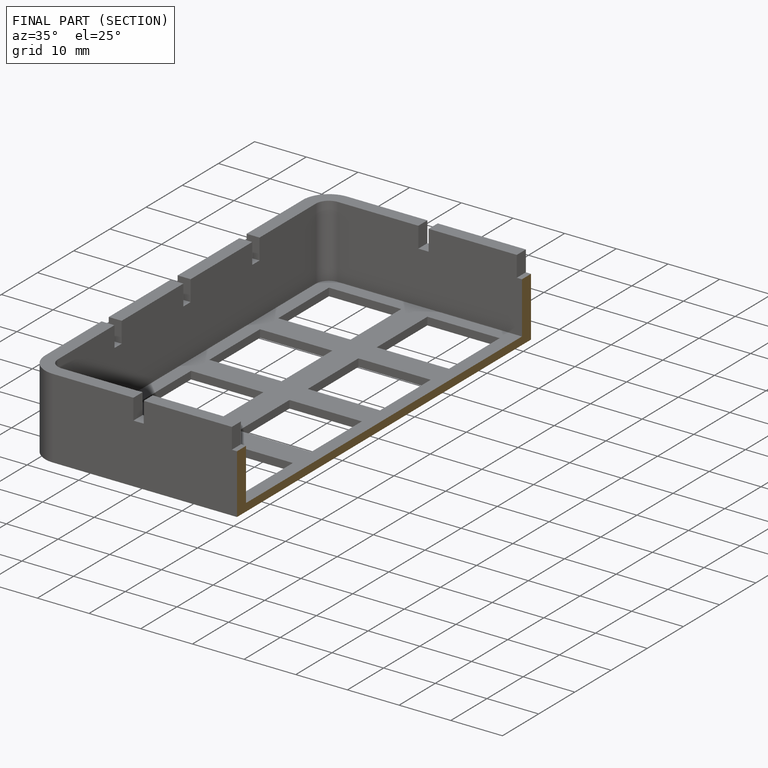
[diagram: finished part — half-section view (interior)]
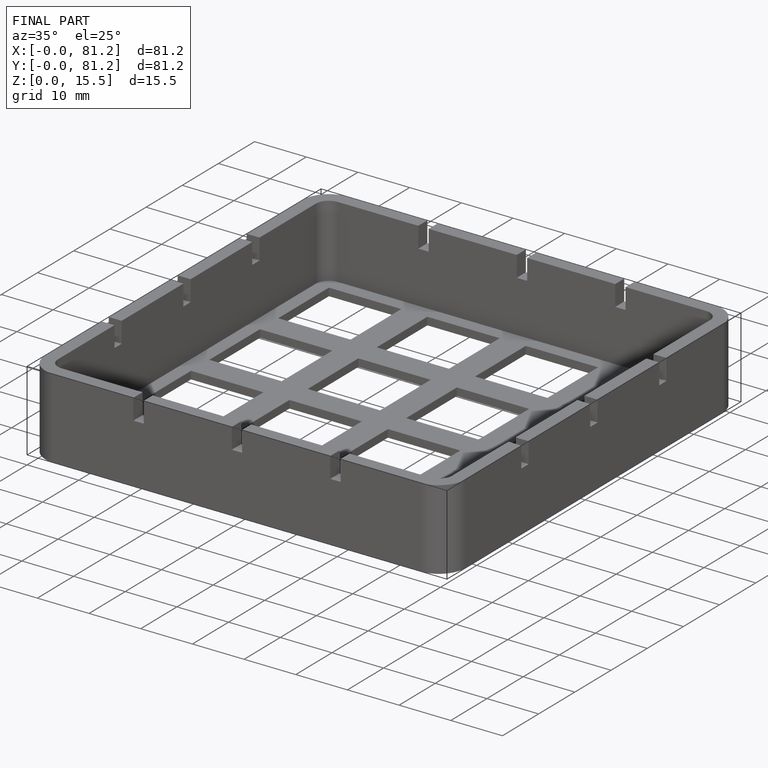
[diagram: finished part — iso view with bounding-box wireframe]
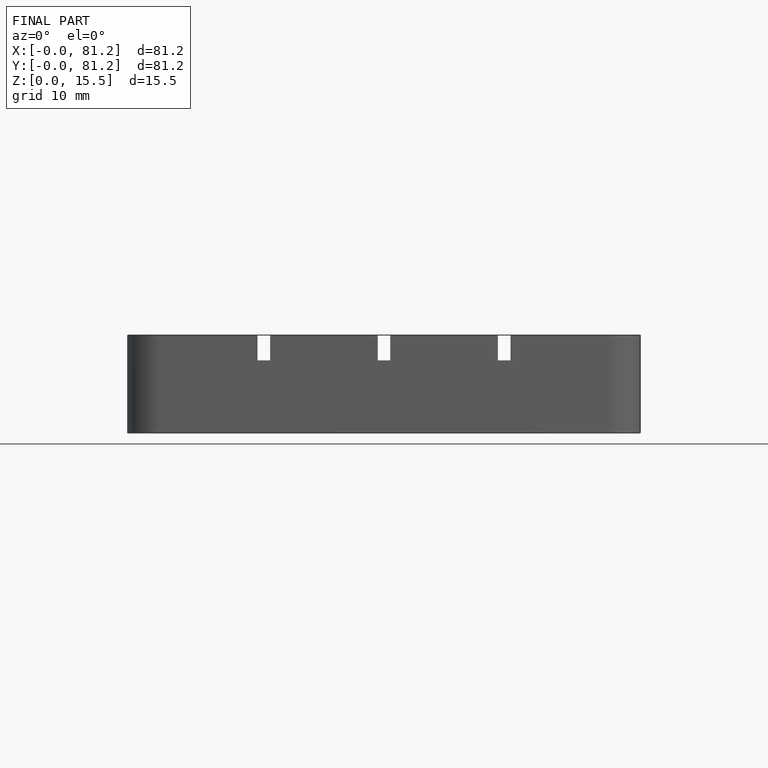
[diagram: finished part — front view with bounding-box wireframe]
